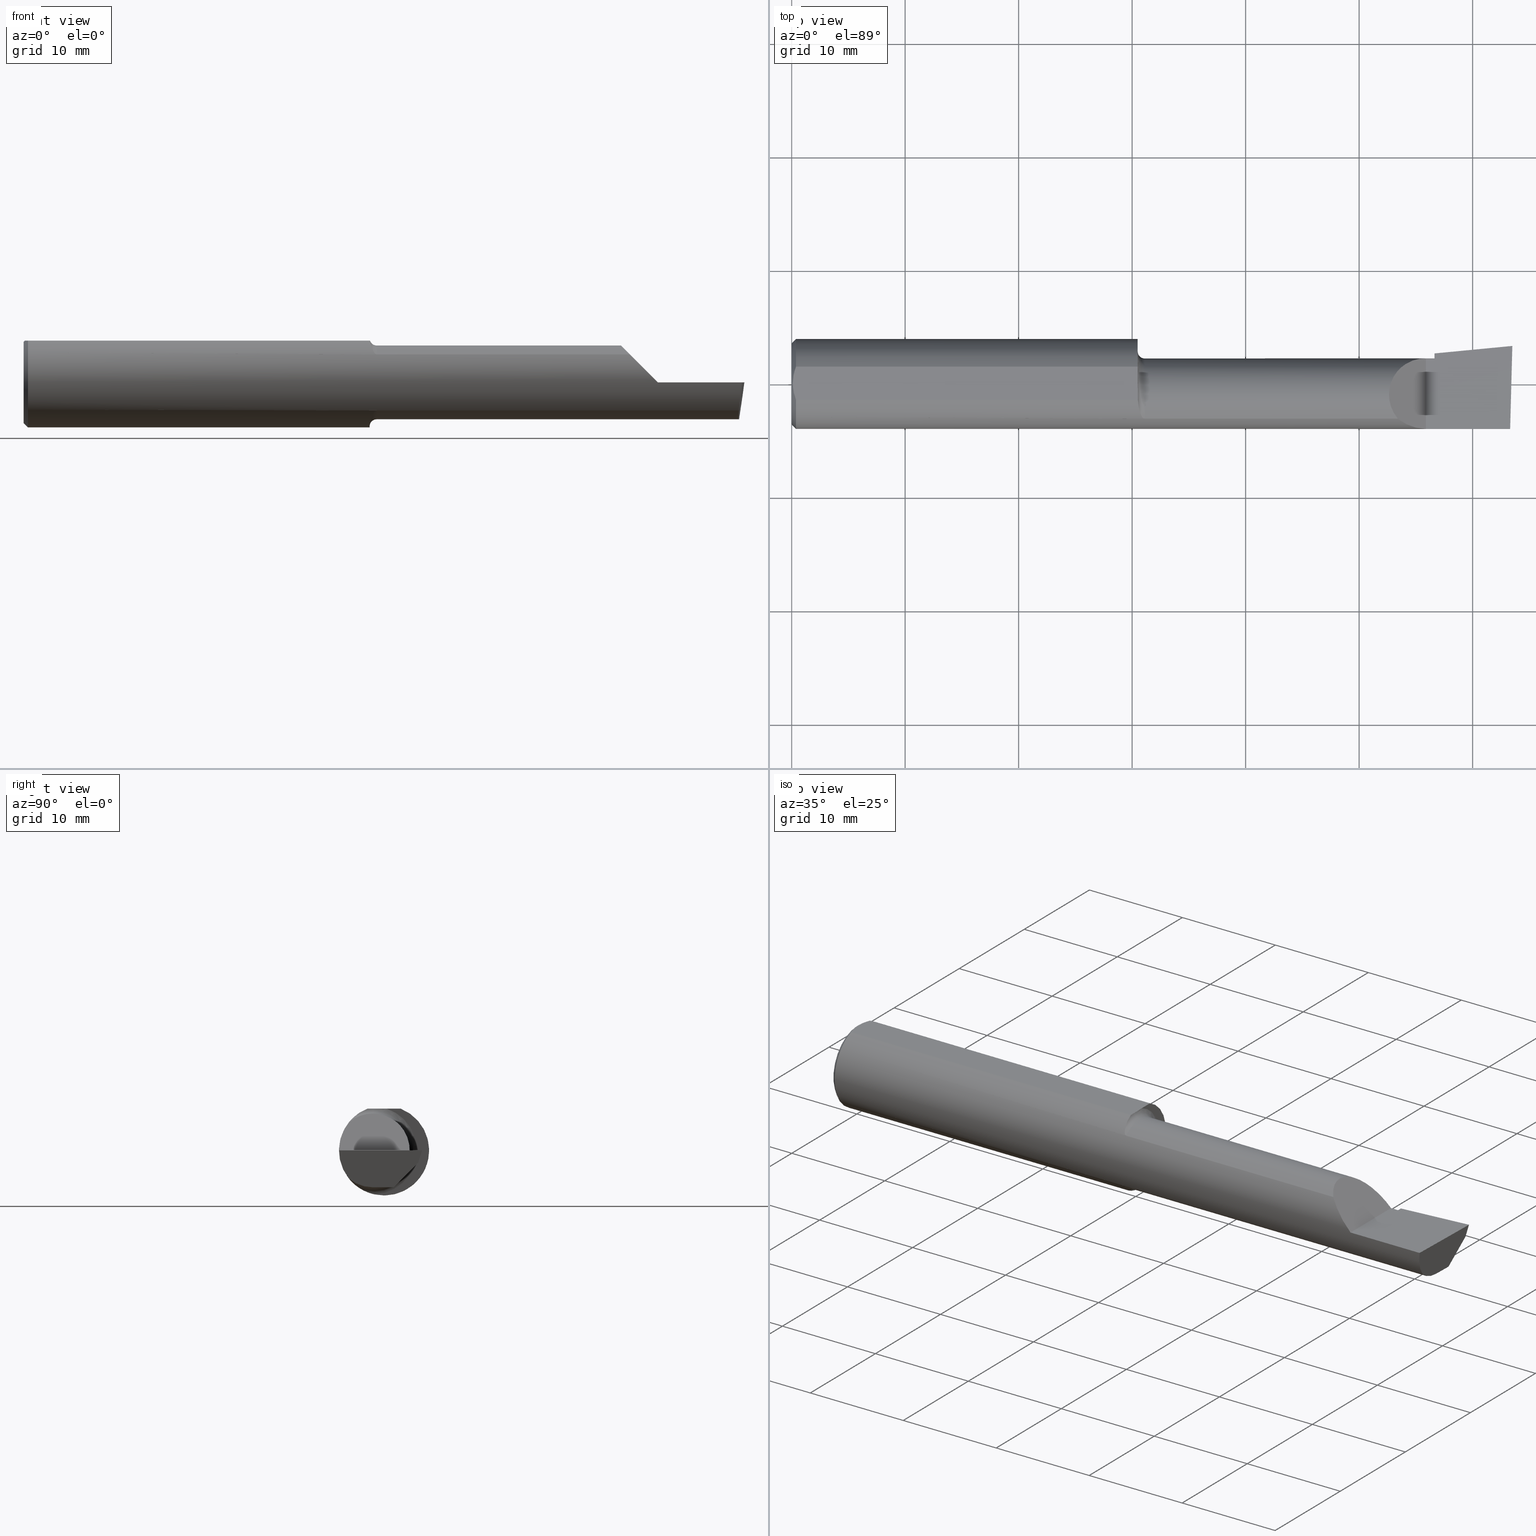
[diagram: canonical four-view strip — front | top / right | iso, engineering-drawing reading convention]
A machine part, canonical four-view strip (front | top / right | iso — engineering-drawing reading convention). The complete STEP part file that produces these views, byte-faithful:
ISO-10303-21;
HEADER;
FILE_DESCRIPTION (( 'STEP AP203' ),
    '1' );
FILE_NAME ('217453-B2901250.STEP',
    '2024-04-26T18:37:54',
    ( '' ),
    ( '' ),
    'SwSTEP 2.0',
    'SolidWorks 2022',
    '' );
FILE_SCHEMA (( 'CONFIG_CONTROL_DESIGN' ));
ENDSEC;

DATA;
#1 = FACE_OUTER_BOUND ( 'NONE', #441, .T. ) ;
#2 = ORIENTED_EDGE ( 'NONE', *, *, #257, .F. ) ;
#3 = LINE ( 'NONE', #332, #149 ) ;
#4 = LINE ( 'NONE', #294, #46 ) ;
#5 = ORIENTED_EDGE ( 'NONE', *, *, #257, .T. ) ;
#6 = DIRECTION ( 'NONE',  ( 0.000000000000000000, 0.000000000000000000, 1.000000000000000000 ) ) ;
#7 = ADVANCED_FACE ( 'NONE', ( #220 ), #367, .F. ) ;
#8 = VERTEX_POINT ( 'NONE', #558 ) ;
#9 = SECURITY_CLASSIFICATION_LEVEL ( 'unclassified' ) ;
#10 = CARTESIAN_POINT ( 'NONE',  ( 0.01499999999999999424, 0.05756040305626779902, 0.1450999999999999512 ) ) ;
#11 = ORIENTED_EDGE ( 'NONE', *, *, #307, .F. ) ;
#12 = COORDINATED_UNIVERSAL_TIME_OFFSET ( 8, 0, .BEHIND. ) ;
#13 = CARTESIAN_POINT ( 'NONE',  ( 1.199999999999999956, 0.2061000000000000332, 0.1450999999999999512 ) ) ;
#14 = EDGE_LOOP ( 'NONE', ( #550, #587, #286, #590, #408 ) ) ;
#15 = APPROVAL_ROLE ( '' ) ;
#16 = CYLINDRICAL_SURFACE ( 'NONE', #361, 0.1278999999999999582 ) ;
#17 = VERTEX_POINT ( 'NONE', #615 ) ;
#18 = PLANE ( 'NONE',  #51 ) ;
#19 = DIRECTION ( 'NONE',  ( -1.000000000000000000, 6.829619984160658046E-18, 0.000000000000000000 ) ) ;
#20 = CARTESIAN_POINT ( 'NONE',  ( 2.229999999999999982, -0.03899999999999999994, 0.000000000000000000 ) ) ;
#21 = ORIENTED_EDGE ( 'NONE', *, *, #365, .F. ) ;
#22 = LOCAL_TIME ( 11, 37, 54.00000000000000000, #351 ) ;
#23 = FACE_OUTER_BOUND ( 'NONE', #196, .T. ) ;
#24 = EDGE_CURVE ( 'NONE', #385, #353, #94, .T. ) ;
#25 = ORIENTED_EDGE ( 'NONE', *, *, #457, .F. ) ;
#26 = CARTESIAN_POINT ( 'NONE',  ( 2.229999999999999982, 0.07184910379568668071, -0.06380349667293373772 ) ) ;
#27 = TOROIDAL_SURFACE ( 'NONE', #105, 0.1528999999999998693, 0.02500000000000000486 ) ;
#28 = ORIENTED_EDGE ( 'NONE', *, *, #131, .T. ) ;
#29 = CARTESIAN_POINT ( 'NONE',  ( 2.200000000000000178, -0.1560999999999999888, 9.797174393178826150E-17 ) ) ;
#30 = CARTESIAN_POINT ( 'NONE',  ( 1.200682916200748851, -0.01309664387410302590, 0.1451000000000000068 ) ) ;
#31 = VERTEX_POINT ( 'NONE', #113 ) ;
#32 = EDGE_CURVE ( 'NONE', #270, #499, #164, .T. ) ;
#33 = CARTESIAN_POINT ( 'NONE',  ( 2.492458454588073469, -0.1561000000000000165, 6.904580041863401145E-17 ) ) ;
#34 = CC_DESIGN_PERSON_AND_ORGANIZATION_ASSIGNMENT ( #399, #111, ( #524 ) ) ;
#35 =( CONVERSION_BASED_UNIT ( 'INCH', #93 ) LENGTH_UNIT ( ) NAMED_UNIT ( #466 ) );
#36 = AXIS2_PLACEMENT_3D ( 'NONE', #561, #115, #315 ) ;
#37 = PLANE ( 'NONE',  #410 ) ;
#38 = VECTOR ( 'NONE', #227, 39.37007874015748854 ) ;
#39 = CARTESIAN_POINT ( 'NONE',  ( 1.199999999999999956, -0.03899999999999998607, 0.000000000000000000 ) ) ;
#40 = DIRECTION ( 'NONE',  ( 0.000000000000000000, 0.000000000000000000, 1.000000000000000000 ) ) ;
#41 = CARTESIAN_POINT ( 'NONE',  ( 2.229999999999999982, -0.03900000000000000688, -0.1279000000000000137 ) ) ;
#42 = CARTESIAN_POINT ( 'NONE',  ( 2.500000000000000000, 0.2061000000000000332, 0.1450999999999999512 ) ) ;
#43 = ORIENTED_EDGE ( 'NONE', *, *, #228, .T. ) ;
#44 = CARTESIAN_POINT ( 'NONE',  ( 2.481412959734991652, -0.1221769230769231412, -0.09715971113303906170 ) ) ;
#45 = FACE_OUTER_BOUND ( 'NONE', #428, .T. ) ;
#46 = VECTOR ( 'NONE', #627, 39.37007874015748143 ) ;
#47 = ORIENTED_EDGE ( 'NONE', *, *, #297, .F. ) ;
#48 = ADVANCED_FACE ( 'NONE', ( #308 ), #362, .T. ) ;
#49 = COORDINATED_UNIVERSAL_TIME_OFFSET ( 8, 0, .BEHIND. ) ;
#50 = DIRECTION ( 'NONE',  ( 0.000000000000000000, 1.000000000000000000, 0.000000000000000000 ) ) ;
#51 = AXIS2_PLACEMENT_3D ( 'NONE', #198, #112, #114 ) ;
#52 = ORIENTED_EDGE ( 'NONE', *, *, #438, .T. ) ;
#53 = PERSON_AND_ORGANIZATION_ROLE ( 'creator' ) ;
#54 = CARTESIAN_POINT ( 'NONE',  ( 2.490006449155409474, -0.2497383096613859377, 6.928474670396028486E-17 ) ) ;
#55 = ORIENTED_EDGE ( 'NONE', *, *, #414, .F. ) ;
#56 = DATE_AND_TIME ( #201, #265 ) ;
#57 = CARTESIAN_POINT ( 'NONE',  ( 1.215102069592271405, -0.1157043737607887368, 0.1048320826875960010 ) ) ;
#58 = ORIENTED_EDGE ( 'NONE', *, *, #405, .T. ) ;
#59 = APPROVAL_DATE_TIME ( #500, #396 ) ;
#60 = DIRECTION ( 'NONE',  ( -6.829619984160658046E-18, -1.000000000000000000, 1.656870447394628111E-16 ) ) ;
#61 = EDGE_CURVE ( 'NONE', #546, #424, #67, .T. ) ;
#62 = EDGE_LOOP ( 'NONE', ( #300, #612, #373, #350, #152, #451, #495, #243, #21, #369, #380, #92 ) ) ;
#63 = CARTESIAN_POINT ( 'NONE',  ( 0.000000000000000000, 0.000000000000000000, 0.000000000000000000 ) ) ;
#64 = DIRECTION ( 'NONE',  ( -1.000000000000000000, 6.829619984160658046E-18, -0.000000000000000000 ) ) ;
#65 = CARTESIAN_POINT ( 'NONE',  ( 2.229999999999999982, -0.03899999999999999994, 0.000000000000000000 ) ) ;
#66 = LINE ( 'NONE', #13, #81 ) ;
#67 = CIRCLE ( 'NONE', #175, 0.1278999999999999304 ) ;
#68 = CARTESIAN_POINT ( 'NONE',  ( 0.000000000000000000, 0.000000000000000000, 0.000000000000000000 ) ) ;
#69 = ADVANCED_FACE ( 'NONE', ( #411 ), #146, .T. ) ;
#70 = DIRECTION ( 'NONE',  ( -6.829619984160658046E-18, -1.000000000000000000, 0.000000000000000000 ) ) ;
#71 = ORIENTED_EDGE ( 'NONE', *, *, #61, .F. ) ;
#72 = CARTESIAN_POINT ( 'NONE',  ( 0.7251356390043992572, -0.03899999999999998607, 2.438630851709968122E-16 ) ) ;
#73 = VERTEX_POINT ( 'NONE', #509 ) ;
#74 = LINE ( 'NONE', #123, #75 ) ;
#75 = VECTOR ( 'NONE', #422, 39.37007874015748854 ) ;
#76 = EDGE_CURVE ( 'NONE', #353, #385, #426, .T. ) ;
#77 = CARTESIAN_POINT ( 'NONE',  ( 0.01499999999999999424, 0.000000000000000000, 0.000000000000000000 ) ) ;
#78 = AXIS2_PLACEMENT_3D ( 'NONE', #568, #234, #50 ) ;
#79 = DIRECTION ( 'NONE',  ( -1.000000000000000000, -0.000000000000000000, -0.000000000000000000 ) ) ;
#80 = CARTESIAN_POINT ( 'NONE',  ( 1.225000000000000089, -0.03899999999999998607, 0.000000000000000000 ) ) ;
#81 = VECTOR ( 'NONE', #60, 39.37007874015748143 ) ;
#82 = CARTESIAN_POINT ( 'NONE',  ( 2.102840288866959728, -0.1221769230769229747, 0.09715971113303922824 ) ) ;
#83 = ORIENTED_EDGE ( 'NONE', *, *, #405, .F. ) ;
#84 = CARTESIAN_POINT ( 'NONE',  ( 1.201725101710128918, -0.06813315891665873425, -0.1407628789512500866 ) ) ;
#85 = EDGE_CURVE ( 'NONE', #530, #246, #272, .T. ) ;
#86 = CARTESIAN_POINT ( 'NONE',  ( 8.735083959741788277E-19, 0.08889999999999995128, 3.155924005931204823E-16 ) ) ;
#87 = CARTESIAN_POINT ( 'NONE',  ( 0.005011318927233133005, -0.01959047621504276041, 0.1450999999999999790 ) ) ;
#88 = DIRECTION ( 'NONE',  ( 6.829619984160658046E-18, 1.000000000000000000, 0.000000000000000000 ) ) ;
#89 = LINE ( 'NONE', #137, #306 ) ;
#90 = LINE ( 'NONE', #491, #573 ) ;
#91 = EDGE_CURVE ( 'NONE', #118, #515, #229, .T. ) ;
#92 = ORIENTED_EDGE ( 'NONE', *, *, #557, .F. ) ;
#93 = LENGTH_MEASURE_WITH_UNIT ( LENGTH_MEASURE( 0.02539999999999999897 ), #283 );
#94 = CIRCLE ( 'NONE', #262, 0.1410999999999996146 ) ;
#95 = DIRECTION ( 'NONE',  ( 0.1219104985252713186, 0.000000000000000000, 0.9925410975618690346 ) ) ;
#96 = ORIENTED_EDGE ( 'NONE', *, *, #76, .F. ) ;
#97 = CC_DESIGN_DATE_AND_TIME_ASSIGNMENT ( #452, #598, ( #348 ) ) ;
#98 = APPROVAL_ROLE ( '' ) ;
#99 = CARTESIAN_POINT ( 'NONE',  ( 1.225000000000000089, -0.1221769230769235853, 0.09715971113303860374 ) ) ;
#100 = APPROVAL_PERSON_ORGANIZATION ( #595, #578, #298 ) ;
#101 = ORIENTED_EDGE ( 'NONE', *, *, #382, .F. ) ;
#102 = APPLICATION_PROTOCOL_DEFINITION ( 'international standard', 'config_control_design', 1994, #202 ) ;
#103 = CARTESIAN_POINT ( 'NONE',  ( 0.01499999999999999424, 0.000000000000000000, 0.000000000000000000 ) ) ;
#104 = ORIENTED_EDGE ( 'NONE', *, *, #593, .F. ) ;
#105 = AXIS2_PLACEMENT_3D ( 'NONE', #316, #512, #70 ) ;
#106 = CALENDAR_DATE ( 2024, 26, 4 ) ;
#107 = CARTESIAN_POINT ( 'NONE',  ( 2.229999999999999982, -0.03899999999999999994, 0.000000000000000000 ) ) ;
#108 = ADVANCED_FACE ( 'NONE', ( #339 ), #581, .T. ) ;
#109 = CARTESIAN_POINT ( 'NONE',  ( 1.727500000000000036, -0.1221769230769231412, 0.09715971113303906170 ) ) ;
#110 = AXIS2_PLACEMENT_3D ( 'NONE', #39, #240, #588 ) ;
#111 = PERSON_AND_ORGANIZATION_ROLE ( 'design_owner' ) ;
#112 = DIRECTION ( 'NONE',  ( -0.7071067811865436870, 0.000000000000000000, -0.7071067811865513475 ) ) ;
#113 = CARTESIAN_POINT ( 'NONE',  ( 0.01499999999999999424, 0.05756040305626779902, 0.1450999999999999512 ) ) ;
#114 = DIRECTION ( 'NONE',  ( -0.7071067811865513475, 0.000000000000000000, 0.7071067811865436870 ) ) ;
#115 = DIRECTION ( 'NONE',  ( 1.000000000000000000, 0.000000000000000000, 0.000000000000000000 ) ) ;
#116 = EDGE_CURVE ( 'NONE', #31, #230, #138, .T. ) ;
#117 = DIRECTION ( 'NONE',  ( -1.000000000000000000, -0.000000000000000000, -0.000000000000000000 ) ) ;
#118 = VERTEX_POINT ( 'NONE', #534 ) ;
#119 = DIRECTION ( 'NONE',  ( 0.000000000000000000, 0.000000000000000000, 1.000000000000000000 ) ) ;
#120 = ORIENTED_EDGE ( 'NONE', *, *, #472, .T. ) ;
#121 = CARTESIAN_POINT ( 'NONE',  ( 2.229999999999999982, 0.1059019569866643667, 0.000000000000000000 ) ) ;
#122 = DIRECTION ( 'NONE',  ( 1.000000000000000000, -6.829619984160658046E-18, 0.000000000000000000 ) ) ;
#123 = CARTESIAN_POINT ( 'NONE',  ( 2.492876757481793604, 0.03497770204970804958, -0.1279000000000000137 ) ) ;
#124 = AXIS2_PLACEMENT_3D ( 'NONE', #185, #583, #427 ) ;
#125 = CARTESIAN_POINT ( 'NONE',  ( 2.229999999999999982, 0.09300187896514579278, -0.04199999999999998873 ) ) ;
#126 = APPLICATION_CONTEXT ( 'configuration controlled 3d designs of mechanical parts and assemblies' ) ;
#127 = PRODUCT_DEFINITION_SHAPE ( 'NONE', 'NONE',  #165 ) ;
#128 = ORIENTED_EDGE ( 'NONE', *, *, #450, .T. ) ;
#129 = CARTESIAN_POINT ( 'NONE',  ( 1.213285512035948255, -0.1129012003027997368, -0.1078842078934678095 ) ) ;
#130 = ORIENTED_EDGE ( 'NONE', *, *, #285, .F. ) ;
#131 = EDGE_CURVE ( 'NONE', #579, #445, #4, .T. ) ;
#132 = LINE ( 'NONE', #231, #575 ) ;
#133 = LINE ( 'NONE', #86, #293 ) ;
#134 = CARTESIAN_POINT ( 'NONE',  ( 2.200000000000000178, 0.08889999999999993741, 9.797174393178826150E-17 ) ) ;
#135 = DIRECTION ( 'NONE',  ( -1.000000000000000000, -0.000000000000000000, -0.000000000000000000 ) ) ;
#136 = EDGE_LOOP ( 'NONE', ( #377, #226, #232, #553, #83, #186 ) ) ;
#137 = CARTESIAN_POINT ( 'NONE',  ( 2.494792847285499882, 0.1204783345406542638, -0.03995929106164489847 ) ) ;
#138 = LINE ( 'NONE', #471, #469 ) ;
#139 = EDGE_CURVE ( 'NONE', #594, #238, #376, .T. ) ;
#140 = ORIENTED_EDGE ( 'NONE', *, *, #618, .F. ) ;
#141 = DIRECTION ( 'NONE',  ( -0.02617694830786745225, -0.9996573249755573709, 0.000000000000000000 ) ) ;
#142 = DIRECTION ( 'NONE',  ( 0.000000000000000000, -1.656870447394628111E-16, -1.000000000000000000 ) ) ;
#143 = CC_DESIGN_DATE_AND_TIME_ASSIGNMENT ( #543, #591, ( #165 ) ) ;
#144 = ORIENTED_EDGE ( 'NONE', *, *, #392, .F. ) ;
#145 = PERSON_AND_ORGANIZATION ( #309, #273 ) ;
#146 = CONICAL_SURFACE ( 'NONE', #36, 0.1560999999999999888, 0.7853981633974602694 ) ;
#147 = CARTESIAN_POINT ( 'NONE',  ( 1.203632829444661656, -0.08367496002137840561, 0.1325537872844357590 ) ) ;
#148 = ORIENTED_EDGE ( 'NONE', *, *, #285, .T. ) ;
#149 = VECTOR ( 'NONE', #184, 39.37007874015748143 ) ;
#150 = CALENDAR_DATE ( 2024, 26, 4 ) ;
#151 = DIRECTION ( 'NONE',  ( 0.7071067811865390240, 0.000000000000000000, -0.7071067811865560104 ) ) ;
#152 = ORIENTED_EDGE ( 'NONE', *, *, #32, .F. ) ;
#153 = ADVANCED_FACE ( 'NONE', ( #284 ), #480, .T. ) ;
#154 = PERSON_AND_ORGANIZATION ( #309, #273 ) ;
#155 = CARTESIAN_POINT ( 'NONE',  ( 2.479563421481711494, -0.09875439382140582811, -0.1172113754642091638 ) ) ;
#156 = EDGE_LOOP ( 'NONE', ( #346, #454, #58, #2 ) ) ;
#157 = VECTOR ( 'NONE', #418, 39.37007874015748143 ) ;
#158 = CARTESIAN_POINT ( 'NONE',  ( 2.200000000000000178, 0.08889999999999993741, 9.797174393178826150E-17 ) ) ;
#159 = AXIS2_PLACEMENT_3D ( 'NONE', #341, #236, #434 ) ;
#160 = CARTESIAN_POINT ( 'NONE',  ( 2.500000000000000000, -0.2500000000000000555, 6.829619984160658046E-17 ) ) ;
#161 = CARTESIAN_POINT ( 'NONE',  ( 0.000000000000000000, -0.03899999999999997913, 0.000000000000000000 ) ) ;
#162 = EDGE_CURVE ( 'NONE', #484, #230, #521, .T. ) ;
#163 = AXIS2_PLACEMENT_3D ( 'NONE', #103, #79, #119 ) ;
#164 = LINE ( 'NONE', #109, #291 ) ;
#165 = PRODUCT_DEFINITION ( 'UNKNOWN', '', #180, #166 ) ;
#166 = DESIGN_CONTEXT ( 'detailed design', #126, 'design' ) ;
#167 = EDGE_LOOP ( 'NONE', ( #401, #267, #169, #320, #513, #303 ) ) ;
#168 = LINE ( 'NONE', #214, #323 ) ;
#169 = ORIENTED_EDGE ( 'NONE', *, *, #438, .F. ) ;
#170 = LINE ( 'NONE', #72, #518 ) ;
#171 = DIRECTION ( 'NONE',  ( -1.000000000000000000, -0.000000000000000000, -0.000000000000000000 ) ) ;
#172 = ADVANCED_FACE ( 'NONE', ( #245 ), #193, .T. ) ;
#173 = CARTESIAN_POINT ( 'NONE',  ( 2.229999999999999982, 0.07403087375572270368, -0.06155460905966987639 ) ) ;
#174 = DIRECTION ( 'NONE',  ( 0.9953961983671787417, 0.09584575252022453640, -9.846307923948147589E-17 ) ) ;
#175 = AXIS2_PLACEMENT_3D ( 'NONE', #65, #456, #213 ) ;
#176 = ORIENTED_EDGE ( 'NONE', *, *, #276, .F. ) ;
#177 = VECTOR ( 'NONE', #305, 39.37007874015748143 ) ;
#178 = CARTESIAN_POINT ( 'NONE',  ( 1.225000000000000089, -0.1221769230769234466, -0.09715971113303868700 ) ) ;
#179 = ADVANCED_FACE ( 'NONE', ( #391 ), #381, .T. ) ;
#180 = PRODUCT_DEFINITION_FORMATION_WITH_SPECIFIED_SOURCE ( 'ANY', '', #524, .NOT_KNOWN. ) ;
#181 = CARTESIAN_POINT ( 'NONE',  ( 2.229999999999999982, 0.07403087375572270368, -0.06155460905966987639 ) ) ;
#182 = VECTOR ( 'NONE', #151, 39.37007874015748143 ) ;
#183 = CARTESIAN_POINT ( 'NONE',  ( 1.199999999999999734, -0.001993101985760211466, 0.1450999999999999790 ) ) ;
#184 = DIRECTION ( 'NONE',  ( 6.829619984160658816E-18, 1.000000000000000000, -6.755756298638184848E-34 ) ) ;
#185 = CARTESIAN_POINT ( 'NONE',  ( 2.509953961983673043, 0.1328584575252021172, -6.829619984160658046E-17 ) ) ;
#186 = ORIENTED_EDGE ( 'NONE', *, *, #472, .F. ) ;
#187 = ADVANCED_BREP_SHAPE_REPRESENTATION ( '217453-B2901250', ( #275, #606 ), #481 ) ;
#188 = ADVANCED_FACE ( 'NONE', ( #322 ), #482, .F. ) ;
#189 = CIRCLE ( 'NONE', #554, 0.1279000000000000137 ) ;
#190 = CARTESIAN_POINT ( 'NONE',  ( 2.477531540255503373, -0.09048025621357887183, -0.1355180469804228571 ) ) ;
#191 = ORIENTED_EDGE ( 'NONE', *, *, #116, .F. ) ;
#192 = CARTESIAN_POINT ( 'NONE',  ( 1.199999999999999956, 0.009212031693343570790, 0.1450999999999999790 ) ) ;
#193 = PLANE ( 'NONE',  #124 ) ;
#194 = ORIENTED_EDGE ( 'NONE', *, *, #335, .F. ) ;
#195 = CARTESIAN_POINT ( 'NONE',  ( 2.500188977433809523, 0.1323605994646679385, 0.001440373173038011871 ) ) ;
#196 = EDGE_LOOP ( 'NONE', ( #475, #389, #417, #295 ) ) ;
#197 = PERSON_AND_ORGANIZATION_ROLE ( 'classification_officer' ) ;
#198 = CARTESIAN_POINT ( 'NONE',  ( 2.200000000000000178, -0.2500000000000000555, 9.797174393178826150E-17 ) ) ;
#199 = ADVANCED_FACE ( 'NONE', ( #45 ), #589, .F. ) ;
#200 = ORIENTED_EDGE ( 'NONE', *, *, #85, .T. ) ;
#201 = CALENDAR_DATE ( 2024, 26, 4 ) ;
#202 = APPLICATION_CONTEXT ( 'configuration controlled 3d designs of mechanical parts and assemblies' ) ;
#203 = CARTESIAN_POINT ( 'NONE',  ( 1.209959943774593816, -0.1060857581125261712, 0.1147206315735843085 ) ) ;
#204 = VERTEX_POINT ( 'NONE', #388 ) ;
#205 = SHAPE_DEFINITION_REPRESENTATION ( #127, #187 ) ;
#206 = DIRECTION ( 'NONE',  ( -6.829619984160657276E-18, -1.000000000000000000, 0.000000000000000000 ) ) ;
#207 = EDGE_LOOP ( 'NONE', ( #542, #47, #191, #194, #488, #25 ) ) ;
#208 = APPLICATION_PROTOCOL_DEFINITION ( 'international standard', 'config_control_design', 1994, #126 ) ;
#209 = ADVANCED_FACE ( 'NONE', ( #1 ), #541, .F. ) ;
#210 = DIRECTION ( 'NONE',  ( -1.000000000000000000, 6.829619984160658046E-18, -0.000000000000000000 ) ) ;
#211 = CLOSED_SHELL ( 'NONE', ( #69, #602, #48, #498, #108, #188, #7, #342, #199, #269, #477, #179, #325, #172, #153, #507, #209 ) ) ;
#212 = AXIS2_PLACEMENT_3D ( 'NONE', #336, #122, #88 ) ;
#213 = DIRECTION ( 'NONE',  ( 0.000000000000000000, -1.000000000000000000, 0.000000000000000000 ) ) ;
#214 = CARTESIAN_POINT ( 'NONE',  ( 0.000000000000000000, -0.05756040305626774350, 0.1451000000000000068 ) ) ;
#215 = LOCAL_TIME ( 11, 37, 54.00000000000000000, #12 ) ;
#216 = ORIENTED_EDGE ( 'NONE', *, *, #365, .T. ) ;
#217 = PLANE ( 'NONE',  #437 ) ;
#218 = ORIENTED_EDGE ( 'NONE', *, *, #450, .F. ) ;
#219 = LINE ( 'NONE', #264, #157 ) ;
#220 = FACE_OUTER_BOUND ( 'NONE', #167, .T. ) ;
#221 = EDGE_CURVE ( 'NONE', #546, #17, #90, .T. ) ;
#222 = CARTESIAN_POINT ( 'NONE',  ( 2.102840288866959728, -0.1221769230769229747, 0.09715971113303922824 ) ) ;
#223 = DIRECTION ( 'NONE',  ( -1.000000000000000000, -0.000000000000000000, -0.000000000000000000 ) ) ;
#224 = ORIENTED_EDGE ( 'NONE', *, *, #139, .T. ) ;
#225 = LINE ( 'NONE', #370, #628 ) ;
#226 = ORIENTED_EDGE ( 'NONE', *, *, #420, .T. ) ;
#227 = DIRECTION ( 'NONE',  ( -4.755568962650852027E-18, -0.6963153109074922131, -0.7177360153954949196 ) ) ;
#228 = EDGE_CURVE ( 'NONE', #256, #73, #133, .T. ) ;
#229 = CIRCLE ( 'NONE', #398, 0.1560999999999999888 ) ;
#230 = VERTEX_POINT ( 'NONE', #352 ) ;
#231 = CARTESIAN_POINT ( 'NONE',  ( 2.479829128617947465, -0.03847180714400752488, -0.1279000000000000137 ) ) ;
#232 = ORIENTED_EDGE ( 'NONE', *, *, #221, .F. ) ;
#233 = CARTESIAN_POINT ( 'NONE',  ( 2.073458044061706751, 0.08889999999999992353, 0.1265419559382922055 ) ) ;
#234 = DIRECTION ( 'NONE',  ( 1.000000000000000000, -6.829619984160658046E-18, 0.000000000000000000 ) ) ;
#235 = CARTESIAN_POINT ( 'NONE',  ( 2.494489586192890851, 0.1184693294778164652, -0.04199999999999998873 ) ) ;
#236 = DIRECTION ( 'NONE',  ( 1.000000000000000000, 0.000000000000000000, 0.000000000000000000 ) ) ;
#237 =( BOUNDED_CURVE ( )  B_SPLINE_CURVE ( 3, ( #29, #562, #324, #222 ),
 .UNSPECIFIED., .F., .F. ) 
 B_SPLINE_CURVE_WITH_KNOTS ( ( 4, 4 ),
 ( 4.712388980384689674, 5.384219407203026719 ),
 .UNSPECIFIED. ) 
 CURVE ( )  GEOMETRIC_REPRESENTATION_ITEM ( )  RATIONAL_B_SPLINE_CURVE ( ( 1.000000000000000000, 0.9627393467969931340, 0.9627393467969931340, 1.000000000000000000 ) ) 
 REPRESENTATION_ITEM ( '' )  );
#238 = VERTEX_POINT ( 'NONE', #552 ) ;
#239 = APPROVAL ( #344, 'UNSPECIFIED' ) ;
#240 = DIRECTION ( 'NONE',  ( -1.000000000000000000, 6.829619984160658046E-18, -0.000000000000000000 ) ) ;
#241 = AXIS2_PLACEMENT_3D ( 'NONE', #190, #586, #95 ) ;
#242 = CARTESIAN_POINT ( 'NONE',  ( 1.199999999999999956, 0.009212031693343570790, 0.1450999999999999790 ) ) ;
#243 = ORIENTED_EDGE ( 'NONE', *, *, #91, .F. ) ;
#244 =( NAMED_UNIT ( * ) SI_UNIT ( $, .STERADIAN. ) SOLID_ANGLE_UNIT ( ) );
#245 = FACE_OUTER_BOUND ( 'NONE', #464, .T. ) ;
#246 = VERTEX_POINT ( 'NONE', #560 ) ;
#247 = PERSON_AND_ORGANIZATION_ROLE ( 'creator' ) ;
#248 = LINE ( 'NONE', #301, #182 ) ;
#249 = EDGE_CURVE ( 'NONE', #393, #246, #252, .T. ) ;
#250 = ORIENTED_EDGE ( 'NONE', *, *, #24, .T. ) ;
#251 = PERSON_AND_ORGANIZATION ( #309, #273 ) ;
#252 = LINE ( 'NONE', #54, #177 ) ;
#253 = VERTEX_POINT ( 'NONE', #556 ) ;
#254 = MECHANICAL_CONTEXT ( 'NONE', #202, 'mechanical' ) ;
#255 = CARTESIAN_POINT ( 'NONE',  ( 1.200891796609107276, -0.05756040305628425807, 0.1451000000000000068 ) ) ;
#256 = VERTEX_POINT ( 'NONE', #158 ) ;
#257 = EDGE_CURVE ( 'NONE', #73, #424, #189, .T. ) ;
#258 = PERSON_AND_ORGANIZATION ( #309, #273 ) ;
#259 = FACE_OUTER_BOUND ( 'NONE', #597, .T. ) ;
#260 = EDGE_LOOP ( 'NONE', ( #337, #317 ) ) ;
#261 = CARTESIAN_POINT ( 'NONE',  ( 1.201889166232298134, -0.07118859043518395435, 0.1396937701002276544 ) ) ;
#262 = AXIS2_PLACEMENT_3D ( 'NONE', #566, #171, #564 ) ;
#263 = ORIENTED_EDGE ( 'NONE', *, *, #557, .T. ) ;
#264 = CARTESIAN_POINT ( 'NONE',  ( 2.200000000000000178, -0.2500000000000000555, 9.797174393178826150E-17 ) ) ;
#265 = LOCAL_TIME ( 11, 37, 54.00000000000000000, #406 ) ;
#266 = VECTOR ( 'NONE', #549, 39.37007874015748143 ) ;
#267 = ORIENTED_EDGE ( 'NONE', *, *, #249, .T. ) ;
#268 = DIRECTION ( 'NONE',  ( 0.000000000000000000, -1.000000000000000000, 0.000000000000000000 ) ) ;
#269 = ADVANCED_FACE ( 'NONE', ( #596 ), #354, .T. ) ;
#270 = VERTEX_POINT ( 'NONE', #99 ) ;
#271 = CARTESIAN_POINT ( 'NONE',  ( 0.01499999999999999424, -0.05756040305626774350, 0.1451000000000000068 ) ) ;
#272 = LINE ( 'NONE', #195, #511 ) ;
#273 = ORGANIZATION ( 'UNSPECIFIED', 'UNSPECIFIED', '' ) ;
#274 = LINE ( 'NONE', #363, #526 ) ;
#275 = MANIFOLD_SOLID_BREP ( 'Extrude7', #211 ) ;
#276 = EDGE_CURVE ( 'NONE', #546, #625, #329, .T. ) ;
#277 = CARTESIAN_POINT ( 'NONE',  ( 2.488081956929748539, -0.1561000000000000443, -0.03563149886036989789 ) ) ;
#278 = PRODUCT_RELATED_PRODUCT_CATEGORY ( 'detail', '', ( #524 ) ) ;
#279 = CARTESIAN_POINT ( 'NONE',  ( 1.202778396491914537, -0.07658129683222661410, -0.1363479870192726706 ) ) ;
#280 = ORIENTED_EDGE ( 'NONE', *, *, #535, .F. ) ;
#281 = CARTESIAN_POINT ( 'NONE',  ( 1.219807963827557851, -0.1204260765459418681, -0.09932603807424099374 ) ) ;
#282 = DIRECTION ( 'NONE',  ( 1.000000000000000000, -6.829619984160658046E-18, 0.000000000000000000 ) ) ;
#283 =( LENGTH_UNIT ( ) NAMED_UNIT ( * ) SI_UNIT ( $, .METRE. ) );
#284 = FACE_OUTER_BOUND ( 'NONE', #136, .T. ) ;
#285 = EDGE_CURVE ( 'NONE', #579, #204, #328, .T. ) ;
#286 = ORIENTED_EDGE ( 'NONE', *, *, #307, .T. ) ;
#287 = DIRECTION ( 'NONE',  ( 0.1053106618241693021, 0.6976485211320172519, 0.7086580314005230807 ) ) ;
#288 = DIRECTION ( 'NONE',  ( 0.000000000000000000, 0.6963153109074923242, 0.7177360153954949196 ) ) ;
#289 = AXIS2_PLACEMENT_3D ( 'NONE', #80, #462, #268 ) ;
#290 = VERTEX_POINT ( 'NONE', #592 ) ;
#291 = VECTOR ( 'NONE', #503, 39.37007874015748143 ) ;
#292 = DIRECTION ( 'NONE',  ( -2.005228508682082829E-18, -0.2936076258024069574, -0.9559260233253794592 ) ) ;
#293 = VECTOR ( 'NONE', #282, 39.37007874015748143 ) ;
#294 = CARTESIAN_POINT ( 'NONE',  ( 1.727500000000000036, -0.1221769230769231412, -0.09715971113303906170 ) ) ;
#295 = ORIENTED_EDGE ( 'NONE', *, *, #517, .T. ) ;
#296 = LOCAL_TIME ( 11, 37, 54.00000000000000000, #394 ) ;
#297 = EDGE_CURVE ( 'NONE', #230, #594, #66, .T. ) ;
#298 = APPROVAL_ROLE ( '' ) ;
#299 = CARTESIAN_POINT ( 'NONE',  ( 1.223136811009168046, -0.1221769230787635163, 0.09715971113072502385 ) ) ;
#300 = ORIENTED_EDGE ( 'NONE', *, *, #131, .F. ) ;
#301 = CARTESIAN_POINT ( 'NONE',  ( 0.01499999999999999424, 0.000000000000000000, -0.1560999999999999888 ) ) ;
#302 = VECTOR ( 'NONE', #412, 39.37007874015748854 ) ;
#303 = ORIENTED_EDGE ( 'NONE', *, *, #483, .F. ) ;
#304 = APPROVAL_STATUS ( 'not_yet_approved' ) ;
#305 = DIRECTION ( 'NONE',  ( 0.02617694830786745225, 0.9996573249755573709, -2.550926060774605708E-18 ) ) ;
#306 = VECTOR ( 'NONE', #287, 39.37007874015748143 ) ;
#307 = EDGE_CURVE ( 'NONE', #385, #118, #248, .T. ) ;
#308 = FACE_OUTER_BOUND ( 'NONE', #584, .T. ) ;
#309 = PERSON ( 'UNSPECIFIED', 'UNSPECIFIED', 'UNSPECIFIED', ('UNSPECIFIED'), ('UNSPECIFIED'), ('UNSPECIFIED') ) ;
#310 =( BOUNDED_CURVE ( )  B_SPLINE_CURVE ( 3, ( #617, #525, #277, #33 ),
 .UNSPECIFIED., .F., .F. ) 
 B_SPLINE_CURVE_WITH_KNOTS ( ( 4, 4 ),
 ( 0.6889164556964199049, 1.360746882514756173 ),
 .UNSPECIFIED. ) 
 CURVE ( )  GEOMETRIC_REPRESENTATION_ITEM ( )  RATIONAL_B_SPLINE_CURVE ( ( 1.000000000000000000, 0.9627393467969931340, 0.9627393467969931340, 1.000000000000000000 ) ) 
 REPRESENTATION_ITEM ( '' )  );
#311 = FACE_OUTER_BOUND ( 'NONE', #431, .T. ) ;
#312 = CC_DESIGN_PERSON_AND_ORGANIZATION_ASSIGNMENT ( #504, #197, ( #348 ) ) ;
#313 = CARTESIAN_POINT ( 'NONE',  ( 2.229999999999999982, 0.1059019569866643667, 0.000000000000000000 ) ) ;
#314 = CARTESIAN_POINT ( 'NONE',  ( 0.000000000000000000, 1.819825143532964315E-17, 0.1410999999999996146 ) ) ;
#315 = DIRECTION ( 'NONE',  ( 0.000000000000000000, 0.000000000000000000, -1.000000000000000000 ) ) ;
#316 = CARTESIAN_POINT ( 'NONE',  ( 1.225000000000000089, -0.03899999999999997913, 0.000000000000000000 ) ) ;
#317 = ORIENTED_EDGE ( 'NONE', *, *, #613, .T. ) ;
#318 = EDGE_CURVE ( 'NONE', #238, #270, #616, .T. ) ;
#319 = CARTESIAN_POINT ( 'NONE',  ( 2.229999999999999982, 0.1059019569866683358, 3.158699242674304408E-16 ) ) ;
#320 = ORIENTED_EDGE ( 'NONE', *, *, #629, .F. ) ;
#321 = DIRECTION ( 'NONE',  ( -1.000000000000000000, 6.829619984160658046E-18, 0.000000000000000000 ) ) ;
#322 = FACE_OUTER_BOUND ( 'NONE', #207, .T. ) ;
#323 = VECTOR ( 'NONE', #117, 39.37007874015748143 ) ;
#324 = CARTESIAN_POINT ( 'NONE',  ( 2.130728481662468532, -0.1443546689866652410, 0.06927151833753059096 ) ) ;
#325 = ADVANCED_FACE ( 'NONE', ( #259 ), #16, .T. ) ;
#326 = ORIENTED_EDGE ( 'NONE', *, *, #249, .F. ) ;
#327 = LINE ( 'NONE', #173, #608 ) ;
#328 =( BOUNDED_CURVE ( )  B_SPLINE_CURVE ( 3, ( #603, #155, #400, #395 ),
 .UNSPECIFIED., .F., .F. ) 
 B_SPLINE_CURVE_WITH_KNOTS ( ( 4, 4 ),
 ( 5.785218908160204343, 6.493234751459727505 ),
 .UNSPECIFIED. ) 
 CURVE ( )  GEOMETRIC_REPRESENTATION_ITEM ( )  RATIONAL_B_SPLINE_CURVE ( ( 1.000000000000000000, 0.9586605761426438832, 0.9586605761426438832, 1.000000000000000000 ) ) 
 REPRESENTATION_ITEM ( '' )  );
#329 = CIRCLE ( 'NONE', #463, 0.1279000000000000137 ) ;
#330 = CARTESIAN_POINT ( 'NONE',  ( 1.211718925422504478, -0.1096997042182718263, -0.1111484413982575942 ) ) ;
#331 = EDGE_LOOP ( 'NONE', ( #492, #604, #397 ) ) ;
#332 = CARTESIAN_POINT ( 'NONE',  ( 2.229999999999999982, -0.2500000000000000555, 9.500418952277011559E-17 ) ) ;
#333 = DIRECTION ( 'NONE',  ( 0.1240019227989220402, 0.3022330132596647290, 0.9451342385281328307 ) ) ;
#334 = DIRECTION ( 'NONE',  ( -1.000000000000000000, 6.829619984160658046E-18, 0.000000000000000000 ) ) ;
#335 = EDGE_CURVE ( 'NONE', #8, #31, #501, .T. ) ;
#336 = CARTESIAN_POINT ( 'NONE',  ( 1.199999999999999956, 0.1138999999999998763, 0.000000000000000000 ) ) ;
#337 = ORIENTED_EDGE ( 'NONE', *, *, #61, .T. ) ;
#338 = CARTESIAN_POINT ( 'NONE',  ( 1.216392177358948112, -0.1172252637552321508, -0.1031022108064115067 ) ) ;
#339 = FACE_OUTER_BOUND ( 'NONE', #62, .T. ) ;
#340 = ORIENTED_EDGE ( 'NONE', *, *, #32, .T. ) ;
#341 = CARTESIAN_POINT ( 'NONE',  ( 0.000000000000000000, 0.000000000000000000, 0.000000000000000000 ) ) ;
#342 = ADVANCED_FACE ( 'NONE', ( #311 ), #18, .F. ) ;
#343 = ORIENTED_EDGE ( 'NONE', *, *, #574, .F. ) ;
#344 = APPROVAL_STATUS ( 'not_yet_approved' ) ;
#345 = CARTESIAN_POINT ( 'NONE',  ( 3.121792066109142165E-32, -0.1560999999999999333, 3.155924005931204823E-16 ) ) ;
#346 = ORIENTED_EDGE ( 'NONE', *, *, #629, .T. ) ;
#347 = CC_DESIGN_PERSON_AND_ORGANIZATION_ASSIGNMENT ( #251, #247, ( #180 ) ) ;
#348 = SECURITY_CLASSIFICATION ( '', '', #9 ) ;
#349 = CARTESIAN_POINT ( 'NONE',  ( 1.208151388483149402, -0.1007050230054237633, 0.1194860125955492097 ) ) ;
#350 = ORIENTED_EDGE ( 'NONE', *, *, #382, .T. ) ;
#351 = COORDINATED_UNIVERSAL_TIME_OFFSET ( 8, 0, .BEHIND. ) ;
#352 = CARTESIAN_POINT ( 'NONE',  ( 1.199999999999999956, 0.05756040305626777820, 0.1450999999999999512 ) ) ;
#353 = VERTEX_POINT ( 'NONE', #314 ) ;
#354 = CONICAL_SURFACE ( 'NONE', #413, 0.1560999999999999888, 0.7853981633974602694 ) ;
#355 = CARTESIAN_POINT ( 'NONE',  ( 0.01158831187866387301, 0.04830813087846569376, 0.1450999999999999512 ) ) ;
#356 = EDGE_CURVE ( 'NONE', #393, #290, #508, .T. ) ;
#357 = VECTOR ( 'NONE', #621, 39.37007874015748143 ) ;
#358 = EDGE_LOOP ( 'NONE', ( #263, #280, #224, #539, #128 ) ) ;
#359 = DIRECTION ( 'NONE',  ( 0.000000000000000000, 0.000000000000000000, 1.000000000000000000 ) ) ;
#360 = CARTESIAN_POINT ( 'NONE',  ( 1.217871348603138060, -0.1188261573898909962, 0.1012426231236232682 ) ) ;
#361 = AXIS2_PLACEMENT_3D ( 'NONE', #161, #455, #206 ) ;
#362 = PLANE ( 'NONE',  #620 ) ;
#363 = CARTESIAN_POINT ( 'NONE',  ( 0.01499999999999999424, 1.911673653469018068E-17, 0.1560999999999999888 ) ) ;
#364 = DIRECTION ( 'NONE',  ( -9.891848030060559526E-17, 0.000000000000000000, -1.000000000000000000 ) ) ;
#365 = EDGE_CURVE ( 'NONE', #31, #118, #442, .T. ) ;
#366 = DIRECTION ( 'NONE',  ( 1.000000000000000000, 0.000000000000000000, 0.000000000000000000 ) ) ;
#367 = PLANE ( 'NONE',  #571 ) ;
#368 = LINE ( 'NONE', #465, #302 ) ;
#369 = ORIENTED_EDGE ( 'NONE', *, *, #116, .T. ) ;
#370 = CARTESIAN_POINT ( 'NONE',  ( 2.500000000000000000, -0.03900000000000000688, -0.1279000000000000137 ) ) ;
#371 = EDGE_CURVE ( 'NONE', #353, #8, #274, .T. ) ;
#372 =( BOUNDED_CURVE ( )  B_SPLINE_CURVE ( 3, ( #82, #439, #233, #134 ),
 .UNSPECIFIED., .F., .F. ) 
 B_SPLINE_CURVE_WITH_KNOTS ( ( 4, 4 ),
 ( 5.575169463880064846, 7.853981633974482790 ),
 .UNSPECIFIED. ) 
 CURVE ( )  GEOMETRIC_REPRESENTATION_ITEM ( )  RATIONAL_B_SPLINE_CURVE ( ( 1.000000000000000000, 0.6120893875309946219, 0.6120893875309946219, 1.000000000000000000 ) ) 
 REPRESENTATION_ITEM ( '' )  );
#373 = ORIENTED_EDGE ( 'NONE', *, *, #356, .T. ) ;
#374 = B_SPLINE_CURVE_WITH_KNOTS ( 'NONE', 3,
 ( #178, #387, #531, #576, #281, #383, #338, #129, #330, #533, #537, #279, #84, #582, #425, #479 ),
 .UNSPECIFIED., .F., .F.,
 ( 4, 2, 2, 2, 2, 2, 2, 4 ),
 ( 1.968192473106879591E-07, 9.217006773806703419E-05, 0.0001841433162288233754, 0.0003680898132103294172, 0.0007359828071733378685, 0.001471768795099358566, 0.002207554783025379372, 0.002943340770951400395 ),
 .UNSPECIFIED. ) ;
#375 = CARTESIAN_POINT ( 'NONE',  ( 1.225000000000000089, -0.1221769230769234466, -0.09715971113303868700 ) ) ;
#376 = B_SPLINE_CURVE_WITH_KNOTS ( 'NONE', 3,
 ( #242, #183, #30, #519, #532, #538 ),
 .UNSPECIFIED., .F., .F.,
 ( 4, 2, 4 ),
 ( 0.01125575560715749712, 0.01210273852957650942, 0.01294972145199552345 ),
 .UNSPECIFIED. ) ;
#377 = ORIENTED_EDGE ( 'NONE', *, *, #528, .F. ) ;
#378 = CARTESIAN_POINT ( 'NONE',  ( 0.01499999999999999424, -0.05756040305626774350, 0.1451000000000000068 ) ) ;
#379 = CC_DESIGN_APPROVAL ( #578, ( #165 ) ) ;
#380 = ORIENTED_EDGE ( 'NONE', *, *, #162, .F. ) ;
#381 = PLANE ( 'NONE',  #212 ) ;
#382 = EDGE_CURVE ( 'NONE', #290, #499, #237, .T. ) ;
#383 = CARTESIAN_POINT ( 'NONE',  ( 1.217557852537987095, -0.1186103045499243419, -0.1015006042428808763 ) ) ;
#384 = CARTESIAN_POINT ( 'NONE',  ( 2.511184687447455932, 0.1200768848871798106, -0.04199999999999999567 ) ) ;
#385 = VERTEX_POINT ( 'NONE', #520 ) ;
#386 = CIRCLE ( 'NONE', #110, 0.1528999999999998693 ) ;
#387 = CARTESIAN_POINT ( 'NONE',  ( 1.223773678789314978, -0.1221769230769234882, -0.09715971113303868700 ) ) ;
#388 = CARTESIAN_POINT ( 'NONE',  ( 2.479815297401247065, -0.03900000000000000688, -0.1279000000000000137 ) ) ;
#389 = ORIENTED_EDGE ( 'NONE', *, *, #618, .T. ) ;
#390 = LINE ( 'NONE', #181, #38 ) ;
#391 = FACE_OUTER_BOUND ( 'NONE', #331, .T. ) ;
#392 = EDGE_CURVE ( 'NONE', #579, #393, #310, .T. ) ;
#393 = VERTEX_POINT ( 'NONE', #572 ) ;
#394 = COORDINATED_UNIVERSAL_TIME_OFFSET ( 8, 0, .BEHIND. ) ;
#395 = CARTESIAN_POINT ( 'NONE',  ( 2.479815297401247065, -0.03900000000000000688, -0.1279000000000000137 ) ) ;
#396 = APPROVAL ( #551, 'UNSPECIFIED' ) ;
#397 = ORIENTED_EDGE ( 'NONE', *, *, #535, .T. ) ;
#398 = AXIS2_PLACEMENT_3D ( 'NONE', #77, #223, #6 ) ;
#399 = PERSON_AND_ORGANIZATION ( #309, #273 ) ;
#400 = CARTESIAN_POINT ( 'NONE',  ( 2.479007902537362362, -0.06983316589608469516, -0.1279000000000000137 ) ) ;
#401 = ORIENTED_EDGE ( 'NONE', *, *, #356, .F. ) ;
#402 = CALENDAR_DATE ( 2024, 26, 4 ) ;
#403 = CARTESIAN_POINT ( 'NONE',  ( 1.221488787992615732, -0.1214795292829874973, 0.09803907726864333205 ) ) ;
#404 = ORIENTED_EDGE ( 'NONE', *, *, #517, .F. ) ;
#405 = EDGE_CURVE ( 'NONE', #447, #424, #327, .T. ) ;
#406 = COORDINATED_UNIVERSAL_TIME_OFFSET ( 8, 0, .BEHIND. ) ;
#407 = CARTESIAN_POINT ( 'NONE',  ( 0.008823987512428459190, 0.03887788046871686748, 0.1450999999999999790 ) ) ;
#408 = ORIENTED_EDGE ( 'NONE', *, *, #547, .T. ) ;
#409 = CARTESIAN_POINT ( 'NONE',  ( 1.225000000000000089, -0.1221769230769235853, 0.09715971113303860374 ) ) ;
#410 = AXIS2_PLACEMENT_3D ( 'NONE', #626, #334, #529 ) ;
#411 = FACE_OUTER_BOUND ( 'NONE', #600, .T. ) ;
#412 = DIRECTION ( 'NONE',  ( -0.9953961983671800740, -0.09584575252021031166, 0.000000000000000000 ) ) ;
#413 = AXIS2_PLACEMENT_3D ( 'NONE', #502, #497, #494 ) ;
#414 = EDGE_CURVE ( 'NONE', #204, #625, #225, .T. ) ;
#415 = DIRECTION ( 'NONE',  ( -1.000000000000000000, -0.000000000000000000, -0.000000000000000000 ) ) ;
#416 = CARTESIAN_POINT ( 'NONE',  ( 2.500000000000000000, -0.03900000000000000688, -0.1279000000000000137 ) ) ;
#417 = ORIENTED_EDGE ( 'NONE', *, *, #414, .T. ) ;
#418 = DIRECTION ( 'NONE',  ( -0.000000000000000000, 1.000000000000000000, -0.000000000000000000 ) ) ;
#419 = ORIENTED_EDGE ( 'NONE', *, *, #528, .T. ) ;
#420 = EDGE_CURVE ( 'NONE', #253, #17, #74, .T. ) ;
#421 = DIRECTION ( 'NONE',  ( 0.7071067811865390240, 8.659560562355036396E-17, 0.7071067811865560104 ) ) ;
#422 = DIRECTION ( 'NONE',  ( -0.9953961983671800740, -0.09584575252021028391, 0.000000000000000000 ) ) ;
#423 = CC_DESIGN_APPROVAL ( #396, ( #348 ) ) ;
#424 = VERTEX_POINT ( 'NONE', #26 ) ;
#425 = CARTESIAN_POINT ( 'NONE',  ( 1.199999999999999734, -0.04153761541479041725, -0.1507758181214154669 ) ) ;
#426 = CIRCLE ( 'NONE', #478, 0.1410999999999996146 ) ;
#427 = DIRECTION ( 'NONE',  ( 0.000000000000000000, 0.2936076258024069574, 0.9559260233253792371 ) ) ;
#428 = EDGE_LOOP ( 'NONE', ( #250, #473 ) ) ;
#429 = LINE ( 'NONE', #476, #555 ) ;
#430 = CARTESIAN_POINT ( 'NONE',  ( 0.000000000000000000, 0.000000000000000000, 0.000000000000000000 ) ) ;
#431 = EDGE_LOOP ( 'NONE', ( #104, #101, #523 ) ) ;
#432 = CC_DESIGN_SECURITY_CLASSIFICATION ( #348, ( #180 ) ) ;
#433 = CARTESIAN_POINT ( 'NONE',  ( 0.01161840624095555018, -0.04838974479540033430, 0.1451000000000000345 ) ) ;
#434 = DIRECTION ( 'NONE',  ( 0.000000000000000000, 0.000000000000000000, -1.000000000000000000 ) ) ;
#435 = AXIS2_PLACEMENT_3D ( 'NONE', #42, #142, #486 ) ;
#436 = ORIENTED_EDGE ( 'NONE', *, *, #335, .T. ) ;
#437 = AXIS2_PLACEMENT_3D ( 'NONE', #416, #611, #366 ) ;
#438 = EDGE_CURVE ( 'NONE', #460, #246, #170, .T. ) ;
#439 = CARTESIAN_POINT ( 'NONE',  ( 2.020546539569986866, -0.02604885517094767886, 0.1794534604300112024 ) ) ;
#440 = DIRECTION ( 'NONE',  ( -0.06894566448119622548, 0.7160281025913036723, -0.6946583704589932573 ) ) ;
#441 = EDGE_LOOP ( 'NONE', ( #148, #140, #419, #200, #326, #144 ) ) ;
#442 = CIRCLE ( 'NONE', #163, 0.1560999999999999888 ) ;
#443 = CALENDAR_DATE ( 2024, 26, 4 ) ;
#444 = DIRECTION ( 'NONE',  ( 1.000000000000000000, 0.000000000000000000, 0.000000000000000000 ) ) ;
#445 = VERTEX_POINT ( 'NONE', #375 ) ;
#446 = CARTESIAN_POINT ( 'NONE',  ( 0.004000000000000188301, 0.009855731042683129120, 0.1450999999999999790 ) ) ;
#447 = VERTEX_POINT ( 'NONE', #125 ) ;
#448 = PERSON_AND_ORGANIZATION_ROLE ( 'design_supplier' ) ;
#449 = DIRECTION ( 'NONE',  ( 0.000000000000000000, -1.000000000000000000, 0.000000000000000000 ) ) ;
#450 = EDGE_CURVE ( 'NONE', #270, #445, #601, .T. ) ;
#451 = ORIENTED_EDGE ( 'NONE', *, *, #318, .F. ) ;
#452 = DATE_AND_TIME ( #402, #215 ) ;
#453 = CARTESIAN_POINT ( 'NONE',  ( 1.218901651199223668, -0.1198118547527632222, 0.1000702561563924509 ) ) ;
#454 = ORIENTED_EDGE ( 'NONE', *, *, #574, .T. ) ;
#455 = DIRECTION ( 'NONE',  ( -1.000000000000000000, 6.829619984160658046E-18, -0.000000000000000000 ) ) ;
#456 = DIRECTION ( 'NONE',  ( 1.000000000000000000, -6.829619984160658046E-18, 0.000000000000000000 ) ) ;
#457 = EDGE_CURVE ( 'NONE', #238, #515, #168, .T. ) ;
#458 = AXIS2_PLACEMENT_3D ( 'NONE', #384, #440, #288 ) ;
#459 = CARTESIAN_POINT ( 'NONE',  ( 0.005030132703184950031, 0.01970541148932063169, 0.1451000000000000068 ) ) ;
#460 = VERTEX_POINT ( 'NONE', #319 ) ;
#461 = APPROVAL_PERSON_ORGANIZATION ( #145, #239, #98 ) ;
#462 = DIRECTION ( 'NONE',  ( -1.000000000000000000, 6.829619984160658046E-18, -0.000000000000000000 ) ) ;
#463 = AXIS2_PLACEMENT_3D ( 'NONE', #107, #210, #449 ) ;
#464 = EDGE_LOOP ( 'NONE', ( #467, #120, #343, #52 ) ) ;
#465 = CARTESIAN_POINT ( 'NONE',  ( 2.511184687447455932, 0.1200768848871798106, -0.04199999999999999567 ) ) ;
#466 = DIMENSIONAL_EXPONENTS ( 1.000000000000000000, 0.000000000000000000, 0.000000000000000000, 0.000000000000000000, 0.000000000000000000, 0.000000000000000000, 0.000000000000000000 ) ;
#467 = ORIENTED_EDGE ( 'NONE', *, *, #85, .F. ) ;
#468 = LINE ( 'NONE', #630, #357 ) ;
#469 = VECTOR ( 'NONE', #444, 39.37007874015748143 ) ;
#470 = AXIS2_PLACEMENT_3D ( 'NONE', #121, #321, #516 ) ;
#471 = CARTESIAN_POINT ( 'NONE',  ( 0.000000000000000000, 0.05756040305626779902, 0.1450999999999999512 ) ) ;
#472 = EDGE_CURVE ( 'NONE', #530, #447, #368, .T. ) ;
#473 = ORIENTED_EDGE ( 'NONE', *, *, #76, .T. ) ;
#474 = DIRECTION ( 'NONE',  ( -4.755568962650852027E-18, -0.6963153109074922131, -0.7177360153954949196 ) ) ;
#475 = ORIENTED_EDGE ( 'NONE', *, *, #420, .F. ) ;
#476 = CARTESIAN_POINT ( 'NONE',  ( 2.229999999999999982, 0.1025187662251111770, -0.01101497306825026216 ) ) ;
#477 = ADVANCED_FACE ( 'NONE', ( #609 ), #27, .F. ) ;
#478 = AXIS2_PLACEMENT_3D ( 'NONE', #68, #415, #610 ) ;
#479 = CARTESIAN_POINT ( 'NONE',  ( 1.199999999999999956, -0.03217692307692354009, -0.1527476861405819564 ) ) ;
#480 = PLANE ( 'NONE',  #458 ) ;
#481 =( GEOMETRIC_REPRESENTATION_CONTEXT ( 3 ) GLOBAL_UNCERTAINTY_ASSIGNED_CONTEXT ( ( #563 ) ) GLOBAL_UNIT_ASSIGNED_CONTEXT ( ( #35, #605, #244 ) ) REPRESENTATION_CONTEXT ( 'NONE', 'WORKASPACE' ) );
#482 = PLANE ( 'NONE',  #435 ) ;
#483 = EDGE_CURVE ( 'NONE', #290, #256, #219, .T. ) ;
#484 = VERTEX_POINT ( 'NONE', #614 ) ;
#485 = CARTESIAN_POINT ( 'NONE',  ( 0.004000000000000238608, 1.884449684559922719E-17, 0.1450999999999999790 ) ) ;
#486 = DIRECTION ( 'NONE',  ( 0.000000000000000000, 1.000000000000000000, -1.656870447394628111E-16 ) ) ;
#487 = AXIS2_PLACEMENT_3D ( 'NONE', #430, #135, #40 ) ;
#488 = ORIENTED_EDGE ( 'NONE', *, *, #547, .F. ) ;
#489 = CC_DESIGN_PERSON_AND_ORGANIZATION_ASSIGNMENT ( #258, #448, ( #180 ) ) ;
#490 = APPROVAL_DATE_TIME ( #559, #578 ) ;
#491 = CARTESIAN_POINT ( 'NONE',  ( 2.229999999999999982, 0.07403087375572270368, -0.06155460905966987639 ) ) ;
#492 = ORIENTED_EDGE ( 'NONE', *, *, #162, .T. ) ;
#493 = APPROVAL_DATE_TIME ( #56, #239 ) ;
#494 = DIRECTION ( 'NONE',  ( 0.000000000000000000, 0.000000000000000000, -1.000000000000000000 ) ) ;
#495 = ORIENTED_EDGE ( 'NONE', *, *, #457, .T. ) ;
#496 = PERSON_AND_ORGANIZATION ( #309, #273 ) ;
#497 = DIRECTION ( 'NONE',  ( 1.000000000000000000, 0.000000000000000000, 0.000000000000000000 ) ) ;
#498 = ADVANCED_FACE ( 'NONE', ( #23 ), #217, .F. ) ;
#499 = VERTEX_POINT ( 'NONE', #565 ) ;
#500 = DATE_AND_TIME ( #106, #22 ) ;
#501 = B_SPLINE_CURVE_WITH_KNOTS ( 'NONE', 3,
 ( #505, #446, #459, #407, #355, #10 ),
 .UNSPECIFIED., .F., .F.,
 ( 4, 2, 4 ),
 ( 0.002889203944960327779, 0.003632851267233511670, 0.004376498589506695562 ),
 .UNSPECIFIED. ) ;
#502 = CARTESIAN_POINT ( 'NONE',  ( 0.01499999999999999424, 0.000000000000000000, 0.000000000000000000 ) ) ;
#503 = DIRECTION ( 'NONE',  ( 1.000000000000000000, -6.829619984160658046E-18, 0.000000000000000000 ) ) ;
#504 = PERSON_AND_ORGANIZATION ( #309, #273 ) ;
#505 = CARTESIAN_POINT ( 'NONE',  ( 0.004000000000000238608, 1.884449684559922719E-17, 0.1450999999999999790 ) ) ;
#506 = DIRECTION ( 'NONE',  ( -6.829619984160658046E-18, -1.000000000000000000, 0.000000000000000000 ) ) ;
#507 = ADVANCED_FACE ( 'NONE', ( #514 ), #567, .F. ) ;
#508 = LINE ( 'NONE', #345, #266 ) ;
#509 = CARTESIAN_POINT ( 'NONE',  ( 2.229999999999999982, 0.08889999999999999292, 3.155924005931206302E-16 ) ) ;
#510 = CC_DESIGN_PERSON_AND_ORGANIZATION_ASSIGNMENT ( #496, #53, ( #165 ) ) ;
#511 = VECTOR ( 'NONE', #333, 39.37007874015748143 ) ;
#512 = DIRECTION ( 'NONE',  ( -1.000000000000000000, 6.829619984160658046E-18, -0.000000000000000000 ) ) ;
#513 = ORIENTED_EDGE ( 'NONE', *, *, #228, .F. ) ;
#514 = FACE_OUTER_BOUND ( 'NONE', #260, .T. ) ;
#515 = VERTEX_POINT ( 'NONE', #271 ) ;
#516 = DIRECTION ( 'NONE',  ( -6.829619984160658046E-18, -1.000000000000000000, 0.000000000000000000 ) ) ;
#517 = EDGE_CURVE ( 'NONE', #625, #17, #468, .T. ) ;
#518 = VECTOR ( 'NONE', #174, 39.37007874015748143 ) ;
#519 = CARTESIAN_POINT ( 'NONE',  ( 1.201345152486867685, -0.03531866109846591717, 0.1450999999999999790 ) ) ;
#520 = CARTESIAN_POINT ( 'NONE',  ( 0.000000000000000000, 0.000000000000000000, -0.1410999999999996146 ) ) ;
#521 = CIRCLE ( 'NONE', #78, 0.1560999999999999888 ) ;
#522 = B_SPLINE_CURVE_WITH_KNOTS ( 'NONE', 3,
 ( #378, #433, #585, #87, #622, #485 ),
 .UNSPECIFIED., .F., .F.,
 ( 4, 2, 4 ),
 ( 0.001402484879066372495, 0.002145844412013350570, 0.002889203944960327779 ),
 .UNSPECIFIED. ) ;
#523 = ORIENTED_EDGE ( 'NONE', *, *, #483, .T. ) ;
#524 = PRODUCT ( '217453-B2901250', '217453-B2901250', '', ( #254 ) ) ;
#525 = CARTESIAN_POINT ( 'NONE',  ( 2.484257628330379664, -0.1443546689866653798, -0.06927151833753047994 ) ) ;
#526 = VECTOR ( 'NONE', #421, 39.37007874015748143 ) ;
#527 = ORIENTED_EDGE ( 'NONE', *, *, #276, .T. ) ;
#528 = EDGE_CURVE ( 'NONE', #253, #530, #89, .T. ) ;
#529 = DIRECTION ( 'NONE',  ( -6.829619984160658046E-18, -1.000000000000000000, 0.000000000000000000 ) ) ;
#530 = VERTEX_POINT ( 'NONE', #235 ) ;
#531 = CARTESIAN_POINT ( 'NONE',  ( 1.222618110610526276, -0.1218695340585153192, -0.09754752781702871745 ) ) ;
#532 = CARTESIAN_POINT ( 'NONE',  ( 1.201279126842364597, -0.04643948704784824771, 0.1451000000000000068 ) ) ;
#533 = CARTESIAN_POINT ( 'NONE',  ( 1.207643545987174827, -0.09968740490940317112, -0.1204690658458911351 ) ) ;
#534 = CARTESIAN_POINT ( 'NONE',  ( 0.01499999999999999424, 0.000000000000000000, -0.1560999999999999888 ) ) ;
#535 = EDGE_CURVE ( 'NONE', #594, #484, #386, .T. ) ;
#536 = ORIENTED_EDGE ( 'NONE', *, *, #371, .T. ) ;
#537 = CARTESIAN_POINT ( 'NONE',  ( 1.205770389155364830, -0.09238103948165252155, -0.1261792856732146528 ) ) ;
#538 = CARTESIAN_POINT ( 'NONE',  ( 1.200891796609107276, -0.05756040305628425807, 0.1451000000000000068 ) ) ;
#539 = ORIENTED_EDGE ( 'NONE', *, *, #318, .T. ) ;
#540 = FACE_OUTER_BOUND ( 'NONE', #156, .T. ) ;
#541 = PLANE ( 'NONE',  #241 ) ;
#542 = ORIENTED_EDGE ( 'NONE', *, *, #139, .F. ) ;
#543 = DATE_AND_TIME ( #443, #545 ) ;
#544 = DIRECTION ( 'NONE',  ( 0.000000000000000000, -1.000000000000000000, 0.000000000000000000 ) ) ;
#545 = LOCAL_TIME ( 11, 37, 54.00000000000000000, #49 ) ;
#546 = VERTEX_POINT ( 'NONE', #580 ) ;
#547 = EDGE_CURVE ( 'NONE', #515, #8, #522, .T. ) ;
#548 = DIRECTION ( 'NONE',  ( 1.000000000000000000, 0.000000000000000000, 0.000000000000000000 ) ) ;
#549 = DIRECTION ( 'NONE',  ( -1.000000000000000000, -0.000000000000000000, -0.000000000000000000 ) ) ;
#550 = ORIENTED_EDGE ( 'NONE', *, *, #371, .F. ) ;
#551 = APPROVAL_STATUS ( 'not_yet_approved' ) ;
#552 = CARTESIAN_POINT ( 'NONE',  ( 1.200891796609107276, -0.05756040305628425807, 0.1451000000000000068 ) ) ;
#553 = ORIENTED_EDGE ( 'NONE', *, *, #613, .F. ) ;
#554 = AXIS2_PLACEMENT_3D ( 'NONE', #20, #64, #544 ) ;
#555 = VECTOR ( 'NONE', #292, 39.37007874015748854 ) ;
#556 = CARTESIAN_POINT ( 'NONE',  ( 2.481724351834623477, 0.03390384752482933362, -0.1279000000000000137 ) ) ;
#557 = EDGE_CURVE ( 'NONE', #445, #484, #374, .T. ) ;
#558 = CARTESIAN_POINT ( 'NONE',  ( 0.004000000000000238608, 1.884449684559922719E-17, 0.1450999999999999790 ) ) ;
#559 = DATE_AND_TIME ( #150, #296 ) ;
#560 = CARTESIAN_POINT ( 'NONE',  ( 2.500000000000007550, 0.1319000000000240536, 7.610330918600022695E-14 ) ) ;
#561 = CARTESIAN_POINT ( 'NONE',  ( 0.01499999999999999424, 0.000000000000000000, 0.000000000000000000 ) ) ;
#562 = CARTESIAN_POINT ( 'NONE',  ( 2.164368501139629863, -0.1560999999999999333, 0.03563149886036996727 ) ) ;
#563 = UNCERTAINTY_MEASURE_WITH_UNIT (LENGTH_MEASURE( 1.000000000000000082E-05 ), #35, 'distance_accuracy_value', 'NONE');
#564 = DIRECTION ( 'NONE',  ( 0.000000000000000000, 0.000000000000000000, 1.000000000000000000 ) ) ;
#565 = CARTESIAN_POINT ( 'NONE',  ( 2.102840288866959728, -0.1221769230769229747, 0.09715971113303922824 ) ) ;
#566 = CARTESIAN_POINT ( 'NONE',  ( 0.000000000000000000, 0.000000000000000000, 0.000000000000000000 ) ) ;
#567 = PLANE ( 'NONE',  #470 ) ;
#568 = CARTESIAN_POINT ( 'NONE',  ( 1.199999999999999956, 0.000000000000000000, 0.000000000000000000 ) ) ;
#569 = DIRECTION ( 'NONE',  ( -1.000000000000000000, 5.691349986800549142E-18, -0.000000000000000000 ) ) ;
#570 = ORIENTED_EDGE ( 'NONE', *, *, #221, .T. ) ;
#571 = AXIS2_PLACEMENT_3D ( 'NONE', #160, #364, #607 ) ;
#572 = CARTESIAN_POINT ( 'NONE',  ( 2.492458454588073469, -0.1561000000000000165, 6.904580041863401145E-17 ) ) ;
#573 = VECTOR ( 'NONE', #624, 39.37007874015748854 ) ;
#574 = EDGE_CURVE ( 'NONE', #460, #447, #429, .T. ) ;
#575 = VECTOR ( 'NONE', #141, 39.37007874015748854 ) ;
#576 = CARTESIAN_POINT ( 'NONE',  ( 1.220642477297819939, -0.1209866175416258599, -0.09864046781463457758 ) ) ;
#577 = APPROVAL_PERSON_ORGANIZATION ( #154, #396, #15 ) ;
#578 = APPROVAL ( #304, 'UNSPECIFIED' ) ;
#579 = VERTEX_POINT ( 'NONE', #44 ) ;
#580 = CARTESIAN_POINT ( 'NONE',  ( 2.229999999999999982, 0.02813183730496726306, -0.1088656347065472818 ) ) ;
#581 = CYLINDRICAL_SURFACE ( 'NONE', #487, 0.1560999999999999888 ) ;
#582 = CARTESIAN_POINT ( 'NONE',  ( 1.200339637342208610, -0.05067448177557534739, -0.1479473295851730374 ) ) ;
#583 = DIRECTION ( 'NONE',  ( -0.09165774897393337561, 0.9519021185660611062, -0.2923717047227312738 ) ) ;
#584 = EDGE_LOOP ( 'NONE', ( #176, #570, #404 ) ) ;
#585 = CARTESIAN_POINT ( 'NONE',  ( 0.008818052469297050708, -0.03886761757380372689, 0.1451000000000000068 ) ) ;
#586 = DIRECTION ( 'NONE',  ( -0.9922060308645493931, 0.02598182930468769317, 0.1218693434051359437 ) ) ;
#587 = ORIENTED_EDGE ( 'NONE', *, *, #24, .F. ) ;
#588 = DIRECTION ( 'NONE',  ( 0.000000000000000000, -1.000000000000000000, 0.000000000000000000 ) ) ;
#589 = PLANE ( 'NONE',  #159 ) ;
#590 = ORIENTED_EDGE ( 'NONE', *, *, #91, .T. ) ;
#591 = DATE_TIME_ROLE ( 'creation_date' ) ;
#592 = CARTESIAN_POINT ( 'NONE',  ( 2.200000000000000178, -0.1560999999999999888, 9.797174393178826150E-17 ) ) ;
#593 = EDGE_CURVE ( 'NONE', #499, #256, #372, .T. ) ;
#594 = VERTEX_POINT ( 'NONE', #192 ) ;
#595 = PERSON_AND_ORGANIZATION ( #309, #273 ) ;
#596 = FACE_OUTER_BOUND ( 'NONE', #14, .T. ) ;
#597 = EDGE_LOOP ( 'NONE', ( #130, #28, #218, #340, #619, #43, #5, #71, #527, #55 ) ) ;
#598 = DATE_TIME_ROLE ( 'classification_date' ) ;
#599 = CARTESIAN_POINT ( 'NONE',  ( 1.213693293804758211, -0.1133809524932120061, 0.1073495223905066021 ) ) ;
#600 = EDGE_LOOP ( 'NONE', ( #96, #536, #436, #216, #11 ) ) ;
#601 = CIRCLE ( 'NONE', #289, 0.1278999999999998749 ) ;
#602 = ADVANCED_FACE ( 'NONE', ( #540 ), #37, .T. ) ;
#603 = CARTESIAN_POINT ( 'NONE',  ( 2.481412959734991652, -0.1221769230769231412, -0.09715971113303906170 ) ) ;
#604 = ORIENTED_EDGE ( 'NONE', *, *, #297, .T. ) ;
#605 =( NAMED_UNIT ( * ) PLANE_ANGLE_UNIT ( ) SI_UNIT ( $, .RADIAN. ) );
#606 = AXIS2_PLACEMENT_3D ( 'NONE', #63, #359, #548 ) ;
#607 = DIRECTION ( 'NONE',  ( -1.000000000000000000, 0.000000000000000000, 9.891848030060559526E-17 ) ) ;
#608 = VECTOR ( 'NONE', #474, 39.37007874015748854 ) ;
#609 = FACE_OUTER_BOUND ( 'NONE', #358, .T. ) ;
#610 = DIRECTION ( 'NONE',  ( 0.000000000000000000, 0.000000000000000000, 1.000000000000000000 ) ) ;
#611 = DIRECTION ( 'NONE',  ( -0.000000000000000000, 0.000000000000000000, 1.000000000000000000 ) ) ;
#612 = ORIENTED_EDGE ( 'NONE', *, *, #392, .T. ) ;
#613 = EDGE_CURVE ( 'NONE', #424, #546, #390, .T. ) ;
#614 = CARTESIAN_POINT ( 'NONE',  ( 1.199999999999999956, -0.03217692307692354009, -0.1527476861405819564 ) ) ;
#615 = CARTESIAN_POINT ( 'NONE',  ( 2.229999999999999982, 0.009665549278534590200, -0.1279000000000000137 ) ) ;
#616 = B_SPLINE_CURVE_WITH_KNOTS ( 'NONE', 3,
 ( #255, #261, #147, #349, #203, #599, #57, #360, #453, #403, #299, #409 ),
 .UNSPECIFIED., .F., .F.,
 ( 4, 2, 2, 2, 2, 4 ),
 ( 5.359409875785950247E-07, 0.001104278744107798152, 0.001656150145667907971, 0.001932085846447961254, 0.002070053696837989739, 0.002208021547228018657 ),
 .UNSPECIFIED. ) ;
#617 = CARTESIAN_POINT ( 'NONE',  ( 2.481412959734991652, -0.1221769230769231412, -0.09715971113303906170 ) ) ;
#618 = EDGE_CURVE ( 'NONE', #253, #204, #132, .T. ) ;
#619 = ORIENTED_EDGE ( 'NONE', *, *, #593, .T. ) ;
#620 = AXIS2_PLACEMENT_3D ( 'NONE', #313, #19, #506 ) ;
#621 = DIRECTION ( 'NONE',  ( 0.000000000000000000, 1.000000000000000000, 0.000000000000000000 ) ) ;
#622 = CARTESIAN_POINT ( 'NONE',  ( 0.004000000000000188301, -0.009851916903761191377, 0.1450999999999999512 ) ) ;
#623 = CC_DESIGN_APPROVAL ( #239, ( #180 ) ) ;
#624 = DIRECTION ( 'NONE',  ( -4.755568962650852027E-18, -0.6963153109074922131, -0.7177360153954949196 ) ) ;
#625 = VERTEX_POINT ( 'NONE', #41 ) ;
#626 = CARTESIAN_POINT ( 'NONE',  ( 2.229999999999999982, 0.1059019569866643667, 0.000000000000000000 ) ) ;
#627 = DIRECTION ( 'NONE',  ( -1.000000000000000000, 6.829619984160658046E-18, -0.000000000000000000 ) ) ;
#628 = VECTOR ( 'NONE', #569, 39.37007874015748143 ) ;
#629 = EDGE_CURVE ( 'NONE', #73, #460, #3, .T. ) ;
#630 = CARTESIAN_POINT ( 'NONE',  ( 2.229999999999999982, -0.03900000000000000688, -0.1279000000000000137 ) ) ;
ENDSEC;
END-ISO-10303-21;
